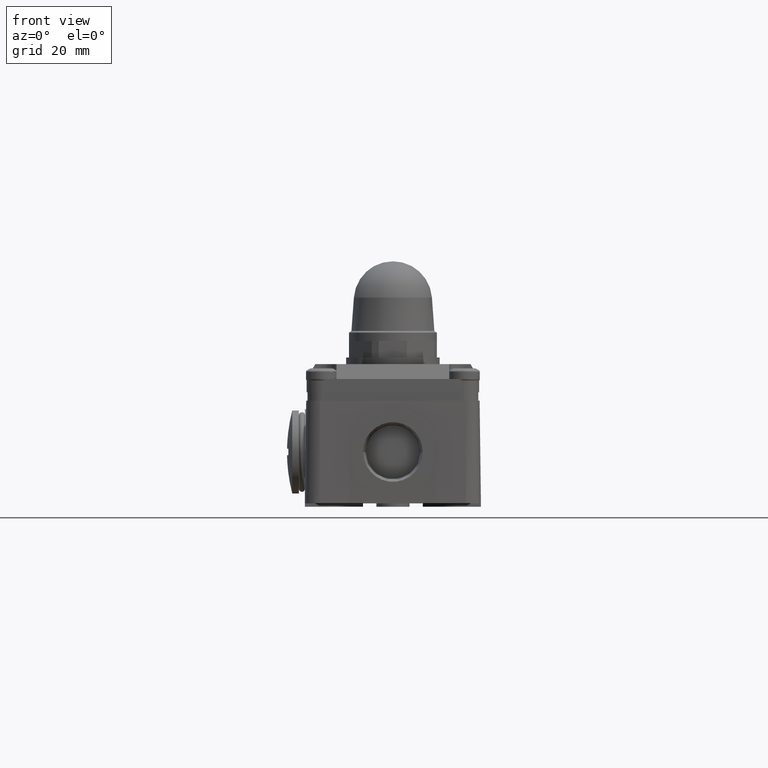
[diagram: clean part render]
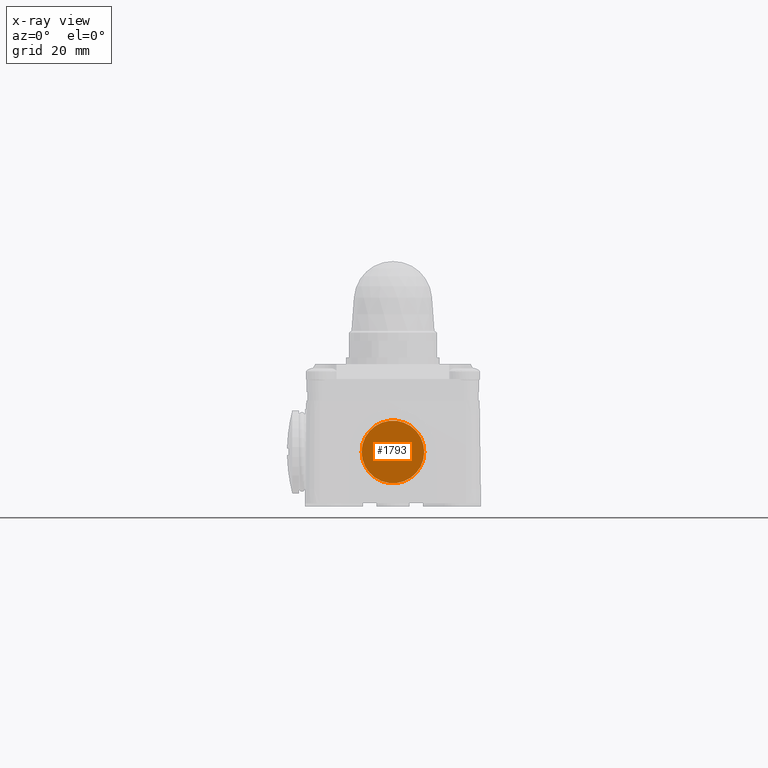
[diagram: x-ray — body ghosted, one internal face saturated and labeled with its STEP entity id]
A machine part, front view, then the same camera in x-ray: the body is ghosted and one INTERNAL B-rep face — a face not visible from any outside direction — is saturated and labeled: STEP entity #1793.
In plain terms, the highlighted planar face has unit normal (0, -1, 0).
Its self-contained STEP definition (entity closure, byte-faithful):
#1793=ADVANCED_FACE('',(#3615),#3616,.T.);
#3615=FACE_OUTER_BOUND('',#5425,.T.);
#3616=PLANE('',#5426);
#5425=EDGE_LOOP('',(#10609,#10610));
#5426=AXIS2_PLACEMENT_3D('',#10611,#10612,#10613);
#10609=ORIENTED_EDGE('',*,*,#12704,.T.);
#10610=ORIENTED_EDGE('',*,*,#12700,.T.);
#10611=CARTESIAN_POINT('',(31.9104298117,12.5979,16.5));
#10612=DIRECTION('',(0.0,-1.0,0.0));
#10613=DIRECTION('',(0.0,0.0,1.0));
#12700=EDGE_CURVE('',#15650,#15648,#15651,.T.);
#12704=EDGE_CURVE('',#15648,#15650,#15655,.T.);
#15648=VERTEX_POINT('',#20087);
#15650=VERTEX_POINT('',#20090);
#15651=CIRCLE('',#20091,9.45);
#15655=CIRCLE('',#20096,9.45);
#20087=CARTESIAN_POINT('',(41.3604298117,12.5979,16.5));
#20090=CARTESIAN_POINT('',(22.4604298117,12.5979,16.5));
#20091=AXIS2_PLACEMENT_3D('',#22754,#22755,#22756);
#20096=AXIS2_PLACEMENT_3D('',#22761,#22762,#22763);
#22754=CARTESIAN_POINT('',(31.9104298117,12.5979,16.5));
#22755=DIRECTION('',(0.0,-1.0,0.0));
#22756=DIRECTION('',(1.0,0.0,-2.99929824045753E-016));
#22761=CARTESIAN_POINT('',(31.9104298117,12.5979,16.5));
#22762=DIRECTION('',(0.0,-1.0,0.0));
#22763=DIRECTION('',(1.0,0.0,-2.99929824045753E-016));